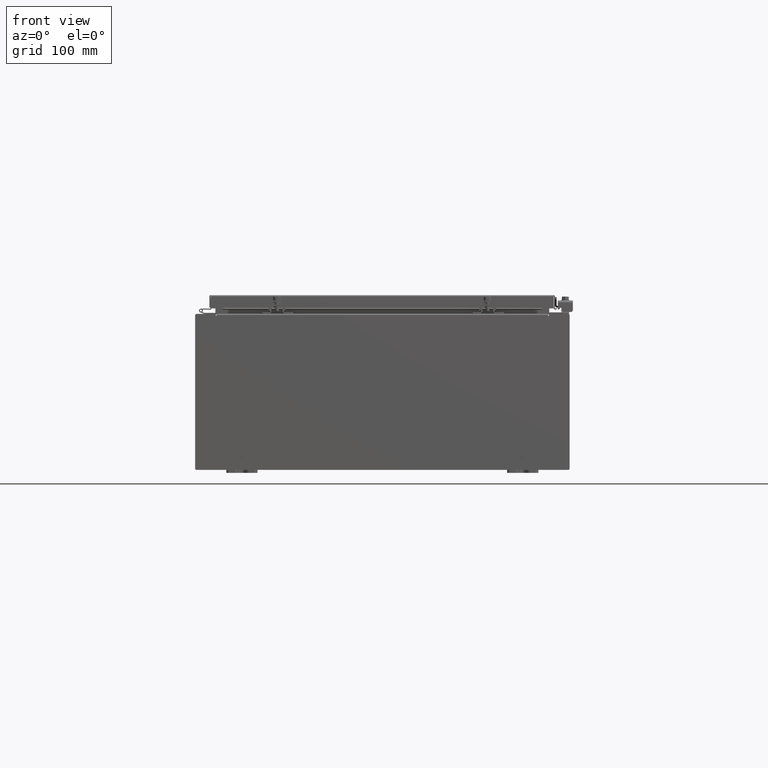
[diagram: clean part render]
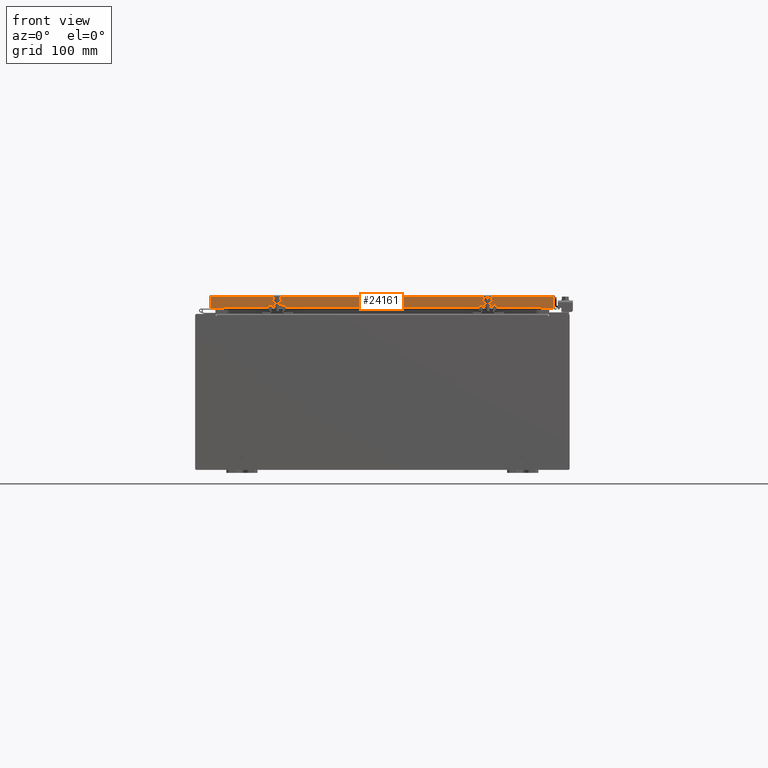
[diagram: same view with one face highlighted and labeled with its STEP entity id]
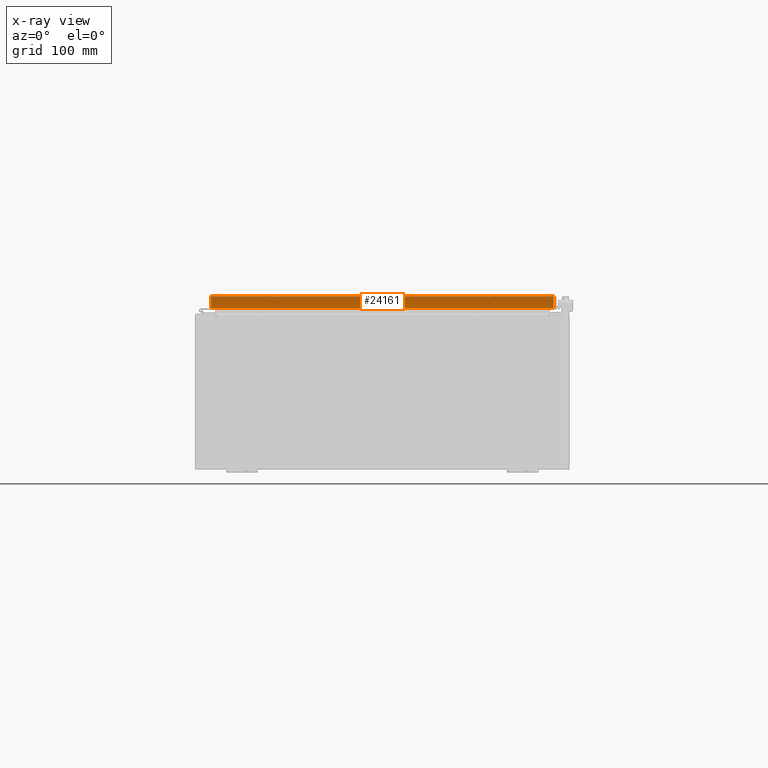
[diagram: x-ray of the same camera — body ghosted, the highlighted face saturated]
A machine part, front view. The second image highlights one B-rep face of the part: STEP entity #24161.
The next image is the same camera in x-ray: the body ghosted, the highlighted face saturated — about 0% of this face is hidden behind the body in this view.
In plain terms, the highlighted planar face has unit normal (-0, 1, -0).
Its self-contained STEP definition (entity closure, byte-faithful):
#383 = CARTESIAN_POINT ( 'NONE',  ( 5.941356432273445000E-030, -17.09399999999999800, 4.844676449176230100E-014 ) ) ;
#528 = DIRECTION ( 'NONE',  ( -3.475696988576954900E-031, 1.000000000000000000, -2.818880942772360500E-015 ) ) ;
#657 = EDGE_CURVE ( 'NONE', #3378, #10480, #25559, .T. ) ;
#1134 = LINE ( 'NONE', #40391, #19493 ) ;
#1348 = CARTESIAN_POINT ( 'NONE',  ( 10.98915786437626500, -17.09399999999999800, -0.07469999999999978000 ) ) ;
#1755 = EDGE_CURVE ( 'NONE', #9547, #37099, #4048, .T. ) ;
#2526 = VERTEX_POINT ( 'NONE', #35322 ) ;
#3378 = VERTEX_POINT ( 'NONE', #6648 ) ;
#3472 = ORIENTED_EDGE ( 'NONE', *, *, #26661, .F. ) ;
#4048 = LINE ( 'NONE', #18843, #37658 ) ;
#4803 = FACE_OUTER_BOUND ( 'NONE', #31437, .T. ) ;
#5417 = VECTOR ( 'NONE', #21625, 39.37007874015748100 ) ;
#6648 = CARTESIAN_POINT ( 'NONE',  ( 10.98915786437626700, -17.09399999999999800, -0.08769999999999897300 ) ) ;
#8188 = VECTOR ( 'NONE', #13897, 39.37007874015748100 ) ;
#9354 = LINE ( 'NONE', #13845, #25706 ) ;
#9547 = VERTEX_POINT ( 'NONE', #25638 ) ;
#10480 = VERTEX_POINT ( 'NONE', #41387 ) ;
#11049 = ORIENTED_EDGE ( 'NONE', *, *, #24770, .T. ) ;
#13845 = CARTESIAN_POINT ( 'NONE',  ( -10.98915786437626900, -17.09399999999999800, 4.844676449176230100E-014 ) ) ;
#13897 = DIRECTION ( 'NONE',  ( -0.0000000000000000000, -2.818880942772360500E-015, -1.000000000000000000 ) ) ;
#14115 = LINE ( 'NONE', #31346, #5417 ) ;
#14346 = VERTEX_POINT ( 'NONE', #26067 ) ;
#15516 = DIRECTION ( 'NONE',  ( -1.000000000000000000, 0.0000000000000000000, 0.0000000000000000000 ) ) ;
#16728 = CARTESIAN_POINT ( 'NONE',  ( -10.98915786437627200, -17.09399999999999800, -0.8499999999999969800 ) ) ;
#17120 = DIRECTION ( 'NONE',  ( 0.0000000000000000000, -2.818880942772360500E-015, -1.000000000000000000 ) ) ;
#18843 = CARTESIAN_POINT ( 'NONE',  ( 11.07799999999999600, -17.09399999999999800, -0.8499999999999996400 ) ) ;
#19493 = VECTOR ( 'NONE', #20951, 39.37007874015748100 ) ;
#20050 = ORIENTED_EDGE ( 'NONE', *, *, #1755, .F. ) ;
#20325 = EDGE_CURVE ( 'NONE', #10480, #2526, #14115, .T. ) ;
#20657 = AXIS2_PLACEMENT_3D ( 'NONE', #383, #528, #23321 ) ;
#20951 = DIRECTION ( 'NONE',  ( 1.000000000000000000, 6.951393977153911800E-032, -9.864047639156036200E-017 ) ) ;
#21625 = DIRECTION ( 'NONE',  ( -1.000000000000000000, 4.379057701015053300E-047, 1.233005954894504400E-016 ) ) ;
#23321 = DIRECTION ( 'NONE',  ( 0.0000000000000000000, 2.818880942772360500E-015, 1.000000000000000000 ) ) ;
#24161 = ADVANCED_FACE ( 'NONE', ( #4803 ), #39501, .F. ) ;
#24290 = ORIENTED_EDGE ( 'NONE', *, *, #30253, .F. ) ;
#24770 = EDGE_CURVE ( 'NONE', #14346, #37099, #9354, .T. ) ;
#25207 = CARTESIAN_POINT ( 'NONE',  ( 10.23915786437626200, -17.09399999999999400, -0.8500000000000000900 ) ) ;
#25559 = LINE ( 'NONE', #1348, #8188 ) ;
#25638 = CARTESIAN_POINT ( 'NONE',  ( -10.23915786437627100, -17.09399999999999400, -0.8500000000000000900 ) ) ;
#25706 = VECTOR ( 'NONE', #17120, 39.37007874015748100 ) ;
#25875 = LINE ( 'NONE', #25207, #33546 ) ;
#26067 = CARTESIAN_POINT ( 'NONE',  ( -10.98915786437627200, -17.09399999999999800, -0.08769999999999787700 ) ) ;
#26558 = DIRECTION ( 'NONE',  ( -1.000000000000000000, 4.379057701015053300E-047, 1.233005954894504400E-016 ) ) ;
#26661 = EDGE_CURVE ( 'NONE', #14346, #3378, #1134, .T. ) ;
#28967 = ORIENTED_EDGE ( 'NONE', *, *, #20325, .F. ) ;
#30253 = EDGE_CURVE ( 'NONE', #2526, #9547, #25875, .T. ) ;
#31346 = CARTESIAN_POINT ( 'NONE',  ( 11.07799999999999600, -17.09399999999999800, -0.8499999999999996400 ) ) ;
#31437 = EDGE_LOOP ( 'NONE', ( #3472, #11049, #20050, #24290, #28967, #33435 ) ) ;
#33435 = ORIENTED_EDGE ( 'NONE', *, *, #657, .F. ) ;
#33546 = VECTOR ( 'NONE', #15516, 39.37007874015748100 ) ;
#35322 = CARTESIAN_POINT ( 'NONE',  ( 10.23915786437626200, -17.09399999999999400, -0.8500000000000000900 ) ) ;
#37099 = VERTEX_POINT ( 'NONE', #16728 ) ;
#37658 = VECTOR ( 'NONE', #26558, 39.37007874015748100 ) ;
#39501 = PLANE ( 'NONE',  #20657 ) ;
#40391 = CARTESIAN_POINT ( 'NONE',  ( 11.07799999999999600, -17.09399999999999800, -0.08770000000000007000 ) ) ;
#41387 = CARTESIAN_POINT ( 'NONE',  ( 10.98915786437626500, -17.09399999999999800, -0.8499999999999996400 ) ) ;